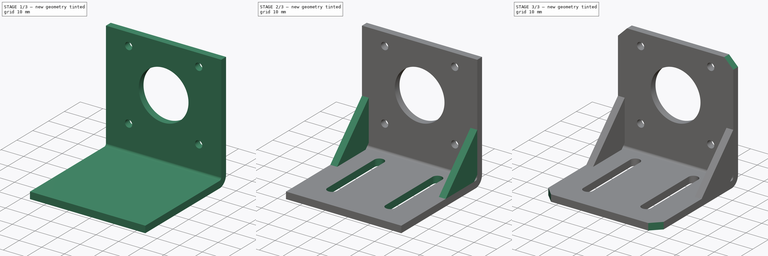
[diagram: build sequence overview — one tinted view per stage of 3, left to right]
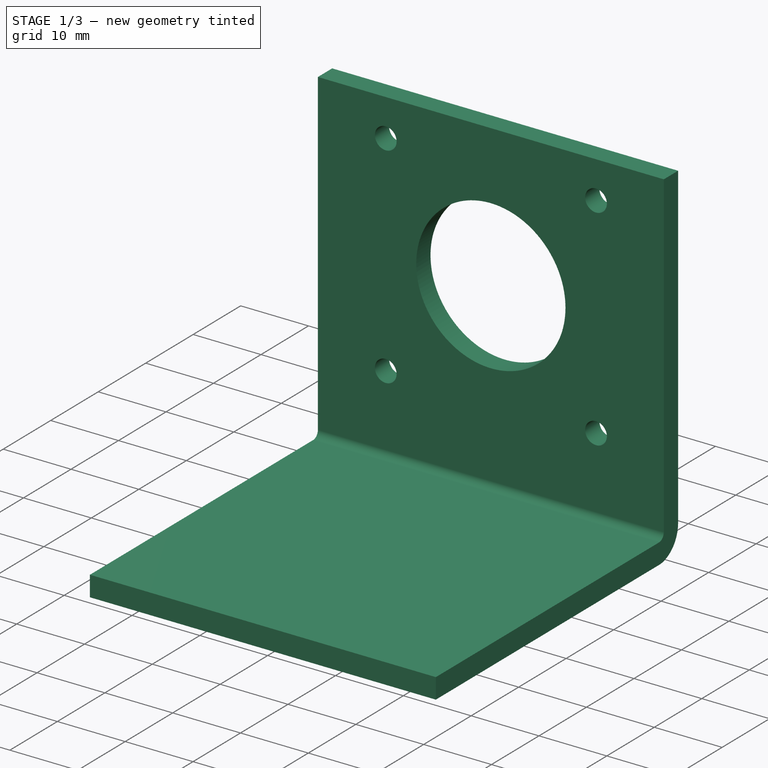
[diagram: stage 1 of 3 — iso view after this stage's code; geometry added in this stage tinted green]
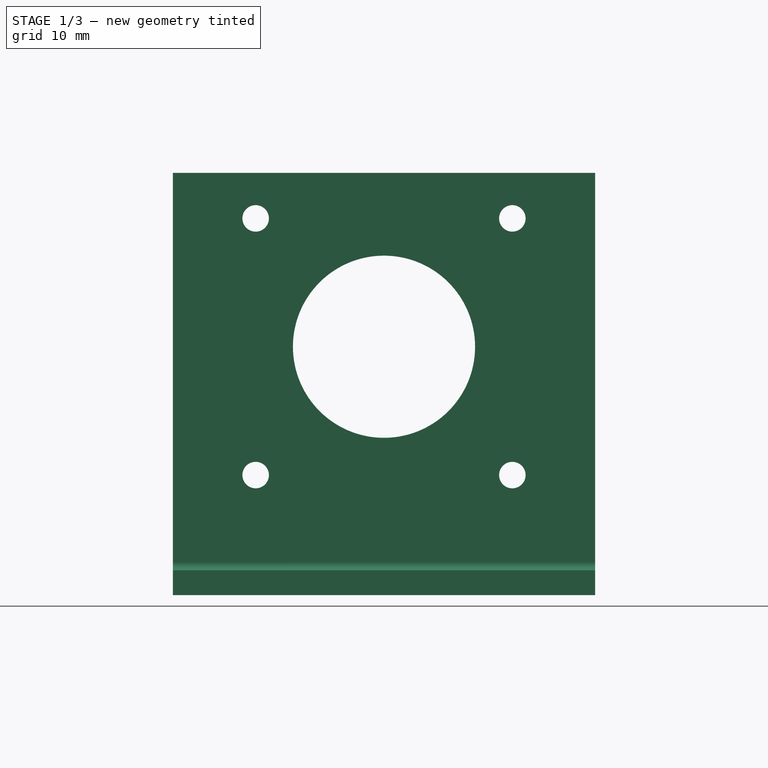
[diagram: stage 1 of 3 — front view after this stage's code; geometry added in this stage tinted green]
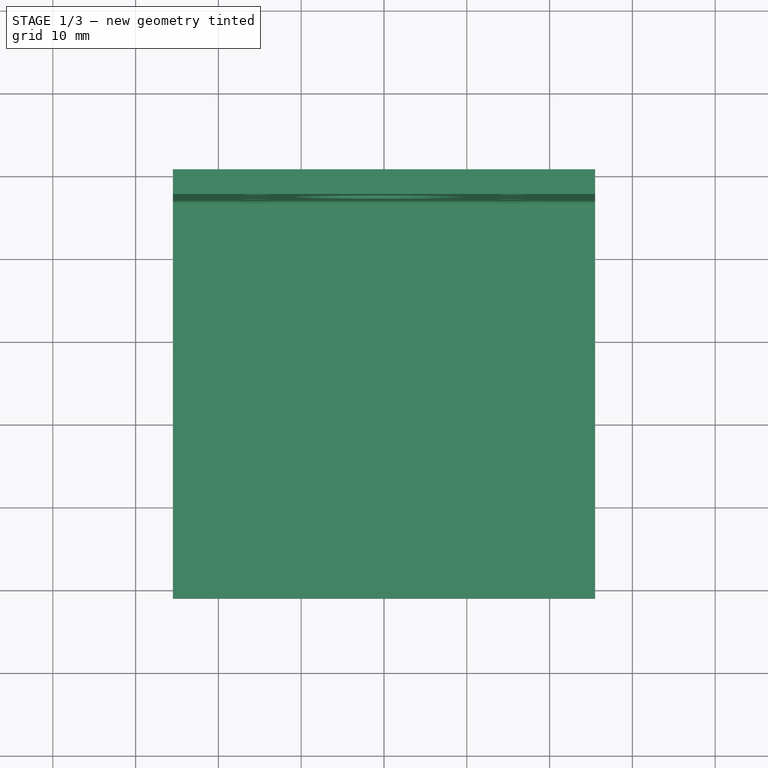
[diagram: stage 1 of 3 — top view after this stage's code; geometry added in this stage tinted green]
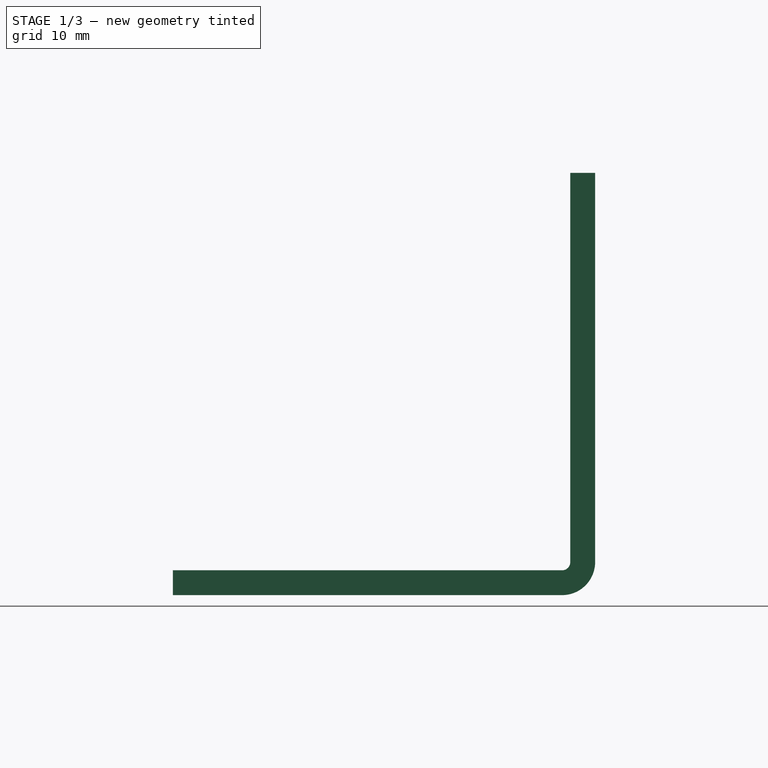
[diagram: stage 1 of 3 — right view after this stage's code; geometry added in this stage tinted green]
FCSTD DOCUMENT  (FreeCAD 0.20R29410 (Git))
Label: MotorBracket
License: All rights reserved
LicenseURL: http://en.wikipedia.org/wiki/All_rights_reserved
objects: Sketcher::SketchObject×5, PartDesign::Pocket×3, App::DocumentObjectGroup×3, PartDesign::Pad×2, PartDesign::Mirrored×2, PartDesign::CoordinateSystem×2, PartDesign::Plane×1, PartDesign::Body×1, App::FeaturePython×1, App::Part×1
note: 21 computed .brp shape members not serialized (recipe doc carries the construction recipe); baked Part::Feature solids carry a one-line shape summary decoded from their .brp

FEATURE [Sketcher::SketchObject] Sketch001
  FullyConstrained = true
  MapMode = 5
  Placement = pos=(0,0,0) rot=(0.57735,0.57735,0.57735;2.0944rad)
  Support = -> [YZ_Plane001]
  expr: Constraints[10] = <<Variables>>.SheetMetalThickness
  sketch-geometry (10):
    g0: LineSegment StartX=-3 StartY=4 StartZ=0 EndX=-3 EndY=51 EndZ=0
    g1: LineSegment StartX=-3 StartY=51 StartZ=0 EndX=0 EndY=51 EndZ=0
    g2: LineSegment StartX=0 StartY=51 StartZ=0 EndX=0 EndY=4 EndZ=0
    g3: LineSegment StartX=-4 StartY=0 StartZ=0 EndX=-51 EndY=0 EndZ=0
    g4: LineSegment StartX=-51 StartY=0 StartZ=0 EndX=-51 EndY=3 EndZ=0
    g5: LineSegment StartX=-51 StartY=3 StartZ=0 EndX=-4 EndY=3 EndZ=0
    g6: ArcOfCircle CenterX=-4 CenterY=4 CenterZ=0 NormalX=0 NormalY=0 NormalZ=1 AngleXU=0 Radius=1 StartAngle=4.71239 EndAngle=6.28319
    g7: GeomPoint X=-3 Y=3 Z=0
    g8: ArcOfCircle CenterX=-4 CenterY=4 CenterZ=0 NormalX=0 NormalY=0 NormalZ=1 AngleXU=0 Radius=4 StartAngle=4.71239 EndAngle=6.28319
    g9: GeomPoint X=0 Y=0 Z=0
  constraints (24):
    c: Coincident(g0,g1)
    c: Coincident(g1,g2)
    c: Horizontal(g1)
    c: Vertical(g0)
    c: Vertical(g2)
    c: Coincident(g3,g4)
    c: Coincident(g4,g5)
    c: Horizontal(g3)
    c: Horizontal(g5)
    c: Vertical(g4)
    c: DistanceX(g1,g1) = 3
    c: DistanceY(g9,g2) = 51
    c: Distance(g9,g3) = 51
    c: Coincident(g9,g-1)
    c: PointOnObject(g7,g0)
    c: PointOnObject(g7,g5)
    c: Tangent(g0,g6) = -1.5708
    c: Tangent(g5,g6) = -1.5708
    c: PointOnObject(g9,g2)
    c: PointOnObject(g9,g3)
    c: Tangent(g2,g8) = 1.5708
    c: Tangent(g3,g8) = 1.5708
    c: Radius(g6) = 1
    c: Coincident(g8,g6)
FEATURE [PartDesign::Pad] Pad001
  Direction = (1,-2e-16,3e-16)
  Length = 51
  Length2 = 25
  Midplane = true
  Placement = pos=(0,0,0) rot=(0.57735,0.57735,0.57735;2.0944rad)
  Profile = -> Sketch001
  ReferenceAxis = -> Sketch001 [N_Axis]
  Type = 0
FEATURE [Sketcher::SketchObject] Sketch002
  AttachmentOffset = pos=(0,30,0) rot=(0,0,1;0rad)
  FullyConstrained = true
  MapMode = 5
  Placement = pos=(0,-6.7e-15,30) rot=(1,0,0;1.5708rad)
  Support = -> [XZ_Plane001]
  sketch-geometry (10):
    g0: Circle CenterX=15.5 CenterY=15.5 CenterZ=0 NormalX=0 NormalY=0 NormalZ=1 AngleXU=0 Radius=1.6
    g1: LineSegment StartX=-15.5 StartY=15.5 StartZ=0 EndX=-15.5 EndY=-15.5 EndZ=0
    g2: LineSegment StartX=-15.5 StartY=-15.5 StartZ=0 EndX=15.5 EndY=-15.5 EndZ=0
    g3: LineSegment StartX=15.5 StartY=-15.5 StartZ=0 EndX=15.5 EndY=15.5 EndZ=0
    g4: LineSegment StartX=15.5 StartY=15.5 StartZ=0 EndX=-15.5 EndY=15.5 EndZ=0
    g5: GeomPoint X=0 Y=0 Z=0
    g6: Circle CenterX=0 CenterY=0 CenterZ=0 NormalX=0 NormalY=0 NormalZ=1 AngleXU=0 Radius=11
    g7: Circle CenterX=-15.5 CenterY=15.5 CenterZ=0 NormalX=0 NormalY=0 NormalZ=1 AngleXU=0 Radius=1.6
    g8: Circle CenterX=-15.5 CenterY=-15.5 CenterZ=0 NormalX=0 NormalY=0 NormalZ=1 AngleXU=0 Radius=1.6
    g9: Circle CenterX=15.5 CenterY=-15.5 CenterZ=0 NormalX=0 NormalY=0 NormalZ=1 AngleXU=0 Radius=1.6
  constraints (22):
    c: Diameter(g0) = 3.2
    c: Coincident(g1,g2)
    c: Coincident(g2,g3)
    c: Coincident(g3,g4)
    c: Coincident(g4,g1)
    c: Horizontal(g2)
    c: Horizontal(g4)
    c: Vertical(g1)
    c: Vertical(g3)
    c: Symmetric(g2,g1,g5)
    c: Equal(g3,g4)
    c: DistanceX(g4,g4) = 31
    c: Coincident(g0,g3)
    c: Coincident(g6,g5)
    c: Diameter(g6) = 22
    c: Coincident(g7,g1)
    c: Coincident(g8,g1)
    c: Coincident(g9,g2)
    c: Equal(g9,g8)
    c: Equal(g8,g7)
    c: Equal(g7,g0)
    c: Coincident(g6,g-1)
FEATURE [PartDesign::Pocket] Pocket001  label="MountHoles"
  BaseFeature = -> Pad001
  Direction = (0,1,2e-16)
  Length = 5
  Length2 = 100
  Placement = pos=(0,0,0) rot=(0.57735,0.57735,0.57735;2.0944rad)
  Profile = -> Sketch002
  Reversed = true
  Type = 1
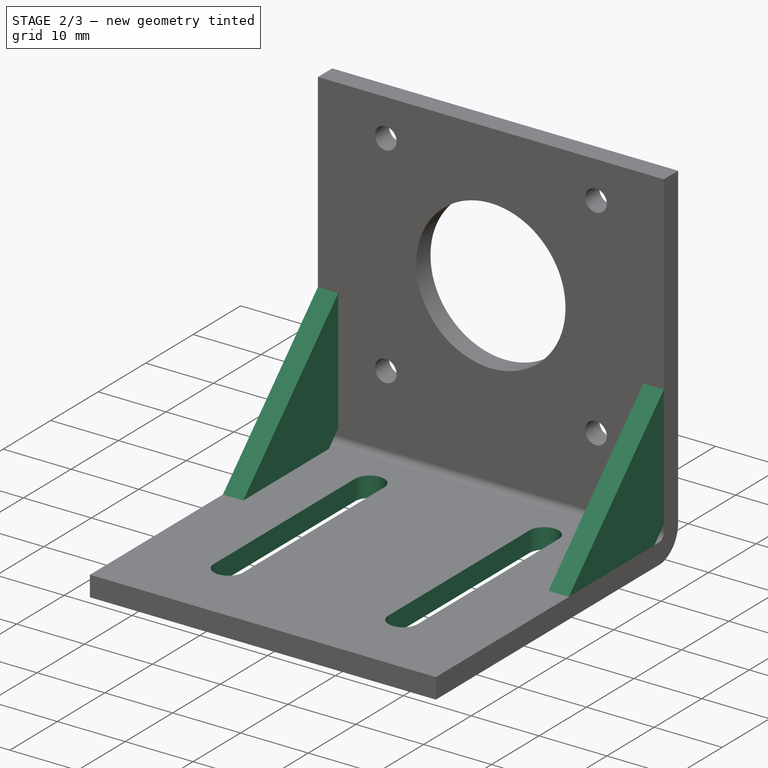
[diagram: stage 2 of 3 — iso view after this stage's code; geometry added in this stage tinted green]
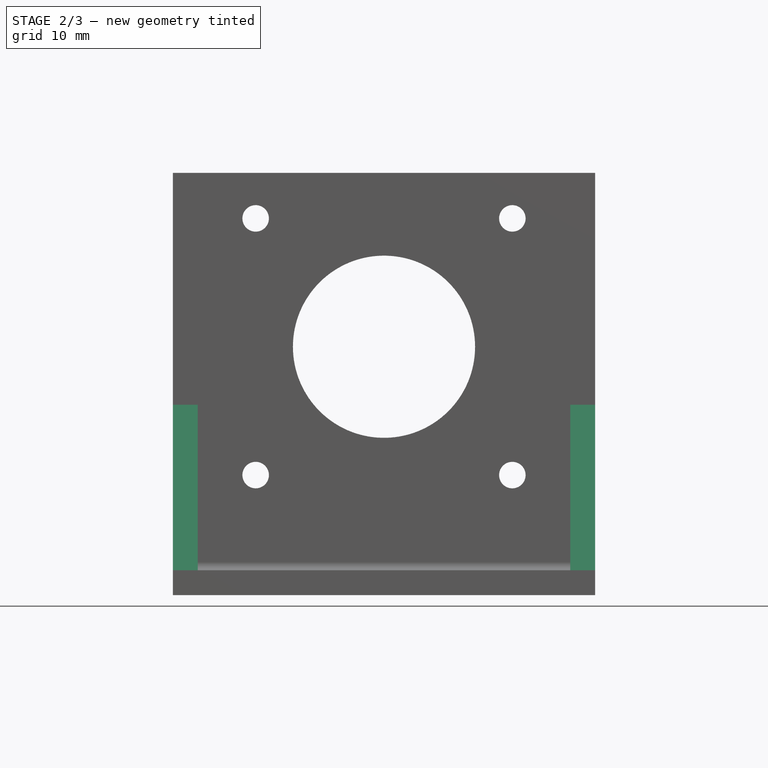
[diagram: stage 2 of 3 — front view after this stage's code; geometry added in this stage tinted green]
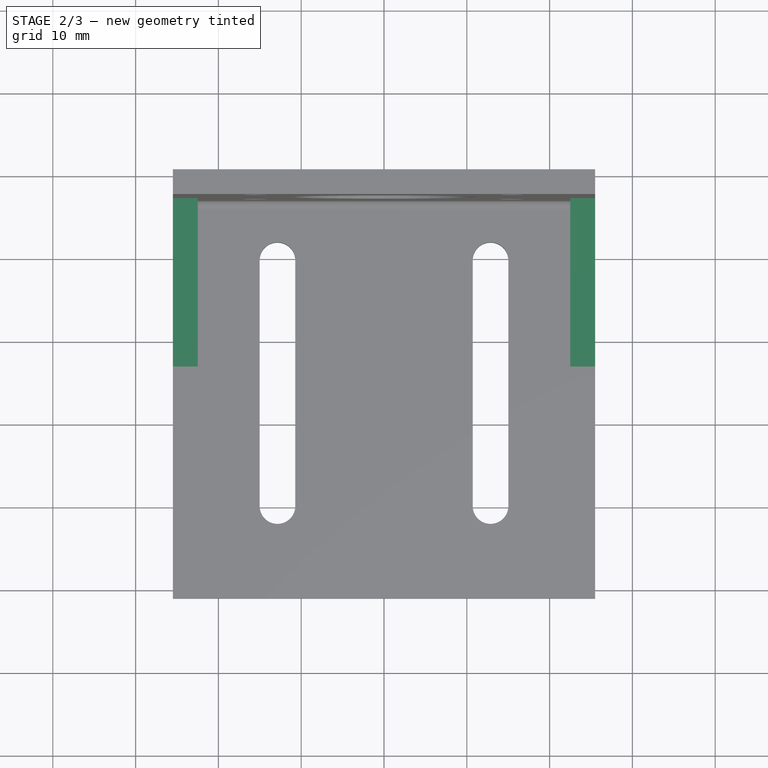
[diagram: stage 2 of 3 — top view after this stage's code; geometry added in this stage tinted green]
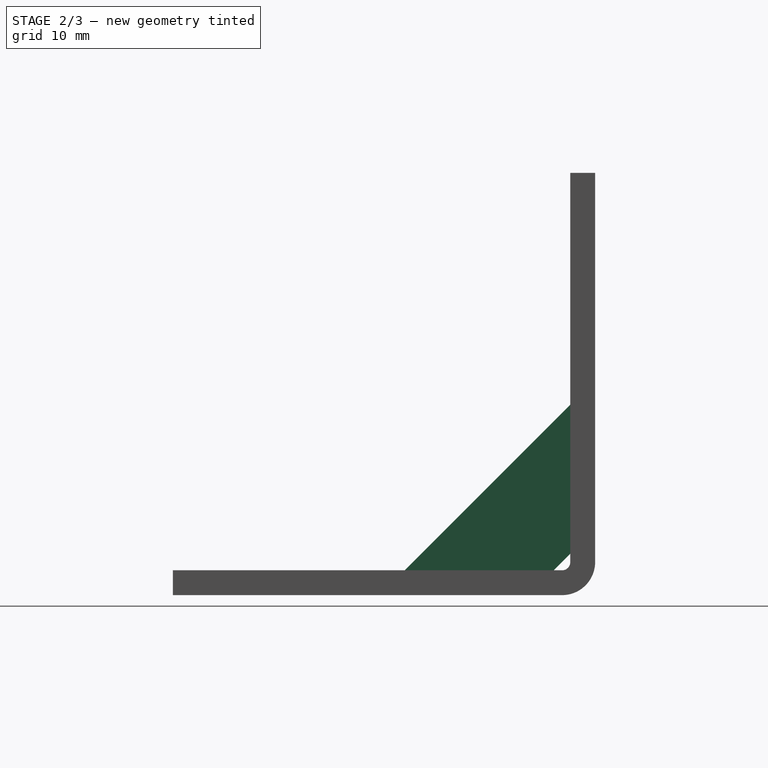
[diagram: stage 2 of 3 — right view after this stage's code; geometry added in this stage tinted green]
FEATURE [Sketcher::SketchObject] Sketch003
  FullyConstrained = true
  MapMode = 5
  Support = -> [XY_Plane001]
  sketch-geometry (6):
    g0: LineSegment StartX=-12.865 StartY=0 StartZ=0 EndX=-12.865 EndY=-10.15 EndZ=0
    g1: ArcOfCircle CenterX=-12.865 CenterY=-10.15 CenterZ=0 NormalX=0 NormalY=0 NormalZ=1 AngleXU=0 Radius=2.15 StartAngle=4e-16 EndAngle=3.1416
    g2: ArcOfCircle CenterX=-12.865 CenterY=-39.85 CenterZ=0 NormalX=0 NormalY=0 NormalZ=1 AngleXU=0 Radius=2.15 StartAngle=3.14159 EndAngle=6.28319
    g3: LineSegment StartX=-10.715 StartY=-10.15 StartZ=0 EndX=-10.715 EndY=-39.85 EndZ=0
    g4: LineSegment StartX=-15.015 StartY=-10.15 StartZ=0 EndX=-15.015 EndY=-39.85 EndZ=0
    g5: LineSegment StartX=-12.865 StartY=-39.85 StartZ=0 EndX=0 EndY=-39.85 EndZ=0
  constraints (17):
    c: PointOnObject(g0,g-1)
    c: Vertical(g0)
    c: DistanceY(g0,g0) = 10.15
    c: Coincident(g1,g0)
    c: Equal(g2,g1)
    c: Vertical(g3)
    c: Vertical(g4)
    c: Coincident(g5,g2)
    c: PointOnObject(g5,g-2)
    c: Horizontal(g5)
    c: Tangent(g1,g3) = 1.5708
    c: Coincident(g1,g4)
    c: Tangent(g2,g4) = -1.5708
    c: Tangent(g2,g3) = 1.5708
    c: DistanceX(g5,g5) = 12.865
    c: Distance(g1,g1) = 4.3
    c: Distance(g1,g2) = 29.7
FEATURE [PartDesign::Pocket] Pocket002  label="BottomSlot"
  BaseFeature = -> Pocket001
  Direction = (0,0,-1)
  Length = 5
  Length2 = 100
  Placement = pos=(0,0,0) rot=(0.57735,0.57735,0.57735;2.0944rad)
  Profile = -> Sketch003
  Reversed = true
  Type = 1
FEATURE [Sketcher::SketchObject] Sketch
  AttachmentOffset = pos=(0,0,-25.5) rot=(0,0,1;0rad)
  FullyConstrained = true
  MapMode = 5
  Placement = pos=(-25.5,5.7e-15,-5.7e-15) rot=(0.57735,0.57735,0.57735;2.0944rad)
  Support = -> [YZ_Plane001]
  expr: .AttachmentOffset.Base.z = <<Pad001>>.Length / -2
  sketch-geometry (8):
    g0: LineSegment StartX=-3 StartY=23 StartZ=0 EndX=-23 EndY=3 EndZ=0
    g1: LineSegment StartX=-3 StartY=3 StartZ=0 EndX=-3 EndY=0 EndZ=0
    g2: LineSegment StartX=-3 StartY=0 StartZ=0 EndX=0 EndY=0 EndZ=0
    g3: LineSegment StartX=-3 StartY=3 StartZ=0 EndX=-3 EndY=5 EndZ=0
    g4: LineSegment StartX=-3 StartY=5 StartZ=0 EndX=-3 EndY=23 EndZ=0
    g5: LineSegment StartX=-23 StartY=3 StartZ=0 EndX=-5 EndY=3 EndZ=0
    g6: LineSegment StartX=-5 StartY=3 StartZ=0 EndX=-3 EndY=3 EndZ=0
    g7: LineSegment StartX=-5 StartY=3 StartZ=0 EndX=-3 EndY=5 EndZ=0
  constraints (22):
    c: Coincident(g0,g5)
    c: Coincident(g4,g0)
    c: DistanceY(g3,g4) = 20
    c: Coincident(g3,g6)
    c: DistanceY(g-1,g6) = 3
    c: Coincident(g1,g6)
    c: PointOnObject(g1,g-1)
    c: Coincident(g2,g1)
    c: Coincident(g2,g-1)
    c: Vertical(g1)
    c: Equal(g1,g2)
    c: Coincident(g3,g4)
    c: Vertical(g3)
    c: Vertical(g4)
    c: Coincident(g5,g6)
    c: Horizontal(g5)
    c: Horizontal(g6)
    c: Coincident(g7,g5)
    c: Coincident(g7,g4)
    c: Equal(g3,g6)
    c: DistanceX(g6,g6) = 2
    c: Equal(g4,g5)
FEATURE [PartDesign::Pad] Pad  label="Rib"
  BaseFeature = -> Pocket002
  Direction = (1,-2e-16,3e-16)
  Length = 3
  Length2 = 10
  Placement = pos=(0,0,0) rot=(0.57735,0.57735,0.57735;2.0944rad)
  Profile = -> Sketch
  ReferenceAxis = -> Sketch [N_Axis]
  Type = 0
  expr: Length = <<Variables>>.SheetMetalThickness
FEATURE [PartDesign::Mirrored] Mirrored
  BaseFeature = -> Pad
  MirrorPlane = -> YZ_Plane001
  Originals = -> [Pocket002,Pad]
  Placement = pos=(0,0,0) rot=(0.57735,0.57735,0.57735;2.0944rad)
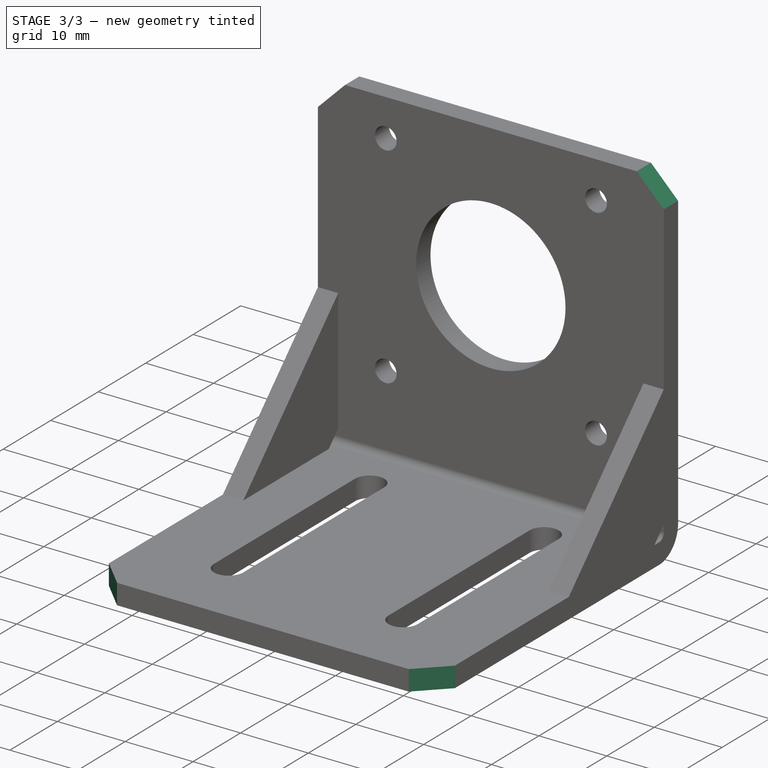
[diagram: stage 3 of 3 — iso view after this stage's code; geometry added in this stage tinted green]
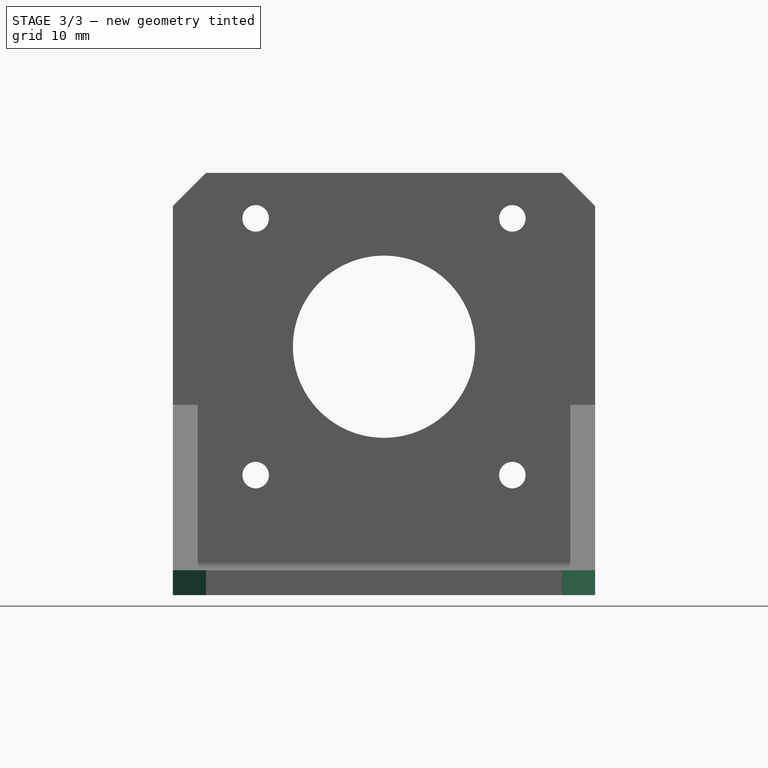
[diagram: stage 3 of 3 — front view after this stage's code; geometry added in this stage tinted green]
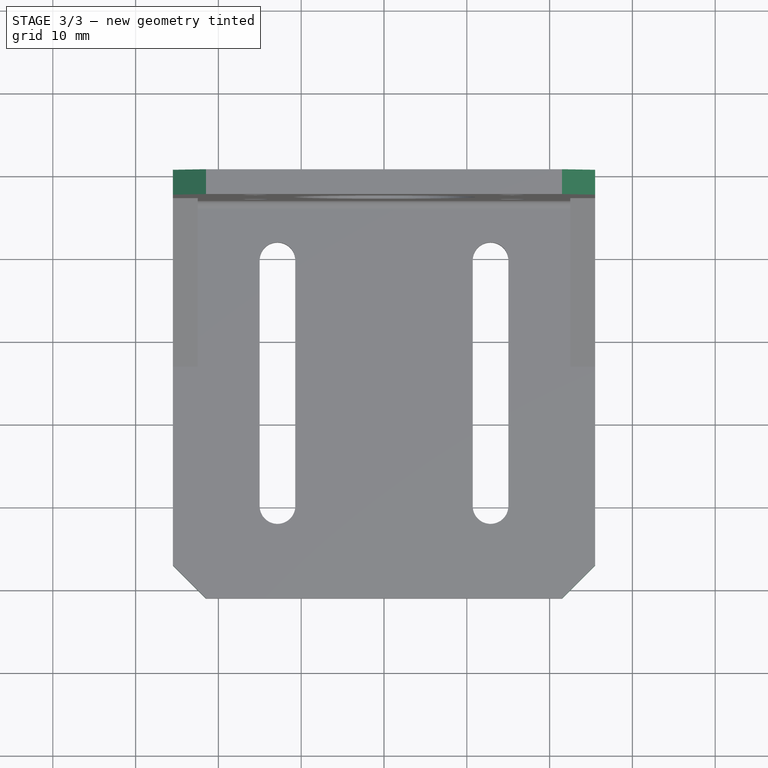
[diagram: stage 3 of 3 — top view after this stage's code; geometry added in this stage tinted green]
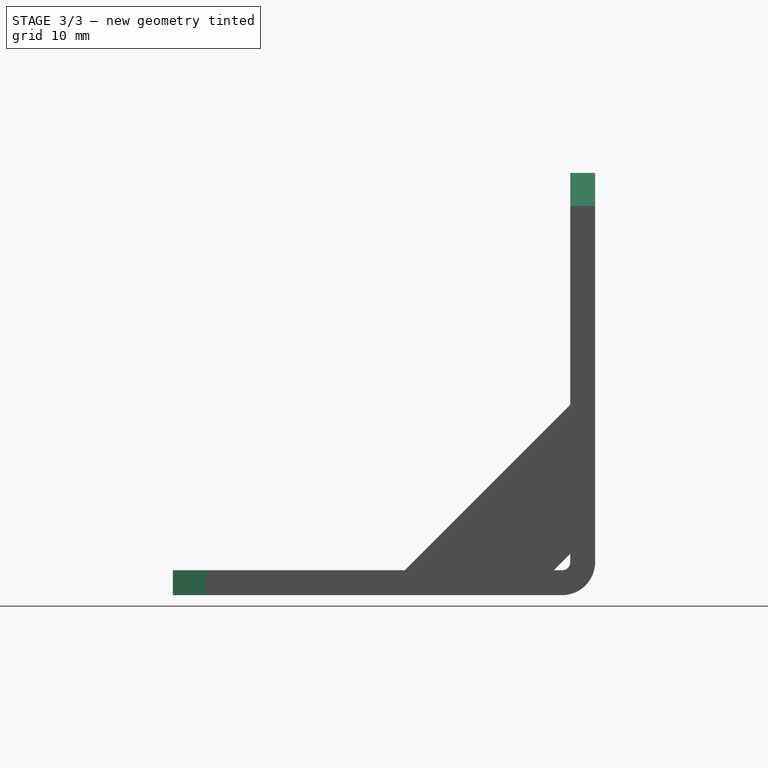
[diagram: stage 3 of 3 — right view after this stage's code; geometry added in this stage tinted green]
FEATURE [Sketcher::SketchObject] Sketch004
  FullyConstrained = true
  MapMode = 5
  Placement = pos=(0,0,0) rot=(1,0,0;1.5708rad)
  Support = -> [XZ_Plane001]
  sketch-geometry (6):
    g0: LineSegment StartX=-72.5 StartY=0 StartZ=0 EndX=0 EndY=72.5 EndZ=0
    g1: LineSegment StartX=0 StartY=72.5 StartZ=0 EndX=72.5 EndY=0 EndZ=0
    g2: LineSegment StartX=72.5 StartY=0 StartZ=0 EndX=72.5 EndY=145 EndZ=0
    g3: LineSegment StartX=-72.5 StartY=0 StartZ=0 EndX=-72.5 EndY=145 EndZ=0
    g4: LineSegment StartX=-72.5 StartY=145 StartZ=0 EndX=72.5 EndY=145 EndZ=0
    g5: LineSegment StartX=-21.5 StartY=51 StartZ=0 EndX=21.5 EndY=51 EndZ=0
  constraints (19):
    c: PointOnObject(g0,g-1)
    c: PointOnObject(g0,g-2)
    c: Coincident(g1,g0)
    c: PointOnObject(g1,g-1)
    c: Coincident(g2,g1)
    c: Vertical(g2)
    c: Coincident(g3,g0)
    c: Vertical(g3)
    c: Coincident(g4,g3)
    c: Coincident(g4,g2)
    c: Horizontal(g4)
    c: Equal(g1,g0)
    c: Angle(g1,g-1) = 0.785398
    c: Equal(g2,g4)
    c: PointOnObject(g5,g0)
    c: PointOnObject(g5,g1)
    c: Horizontal(g5)
    c: DistanceY(g-1,g5) = 51
    c: DistanceX(g5,g5) = 43
FEATURE [PartDesign::Pocket] Pocket  label="CornerChamfer"
  BaseFeature = -> Mirrored
  Direction = (0,1,2e-16)
  Length = 5
  Length2 = 5
  Placement = pos=(0,0,0) rot=(0.57735,0.57735,0.57735;2.0944rad)
  Profile = -> Sketch004
  ReferenceAxis = -> Sketch004 [N_Axis]
  Reversed = true
  Type = 1
FEATURE [PartDesign::Plane] DatumPlane  label="ChamferMirrorRef"
  AttachmentOffset = pos=(0,0,0) rot=(1,0,0;0.785398rad)
  Length = 65.8074
  MapMode = 5
  Placement = pos=(0,0,0) rot=(1,0,0;2.35619rad)
  ResizeMode = 0
  Support = -> [XZ_Plane001]
  Width = 122.288
FEATURE [PartDesign::Mirrored] Mirrored001  label="ChamferMirror"
  BaseFeature = -> Pocket
  MirrorPlane = -> DatumPlane
  Originals = -> [Pocket]
  Placement = pos=(0,0,0) rot=(0.57735,0.57735,0.57735;2.0944rad)
FEATURE [PartDesign::Body] Body001
  Group = -> [Sketch001,Pad001,Sketch002,Pocket001,Sketch003,Pocket002,Sketch,Pad,Mirrored,Sketch004,Pocket,DatumPlane,Mirrored001]
  Origin = -> Origin001
  Tip = -> Mirrored001
FEATURE [App::DocumentObjectGroup] Parts
FEATURE [App::FeaturePython] Variables  # WARN: FeaturePython — macro-defined, semantics opaque (R4)
  SheetMetalThickness = 3
  Type = App::PropertyContainer
FEATURE [App::DocumentObjectGroup] Constraints
FEATURE [App::DocumentObjectGroup] Configurations
FEATURE [PartDesign::CoordinateSystem] LCS_bottom
  AttacherType = Attacher::AttachEngine3D
  MapMode = 2
  Support = -> [XY_Plane]
FEATURE [PartDesign::CoordinateSystem] LCS_motor_mount
  AttacherType = Attacher::AttachEngine3D
  AttachmentOffset = pos=(0,0,3) rot=(0,0,1;0rad)
  MapMode = 2
  Placement = pos=(0,-3,30) rot=(1,0,0;1.5708rad)
  Support = -> [Sketch002]
  expr: .AttachmentOffset.Base.z = <<Variables>>.SheetMetalThickness
FEATURE [App::Part] Assembly
  AssemblyType = Part::Link
  Group = -> [Variables,Constraints,Configurations,Body001,LCS_bottom,LCS_motor_mount]
  Origin = -> Origin
  Type = Assembly
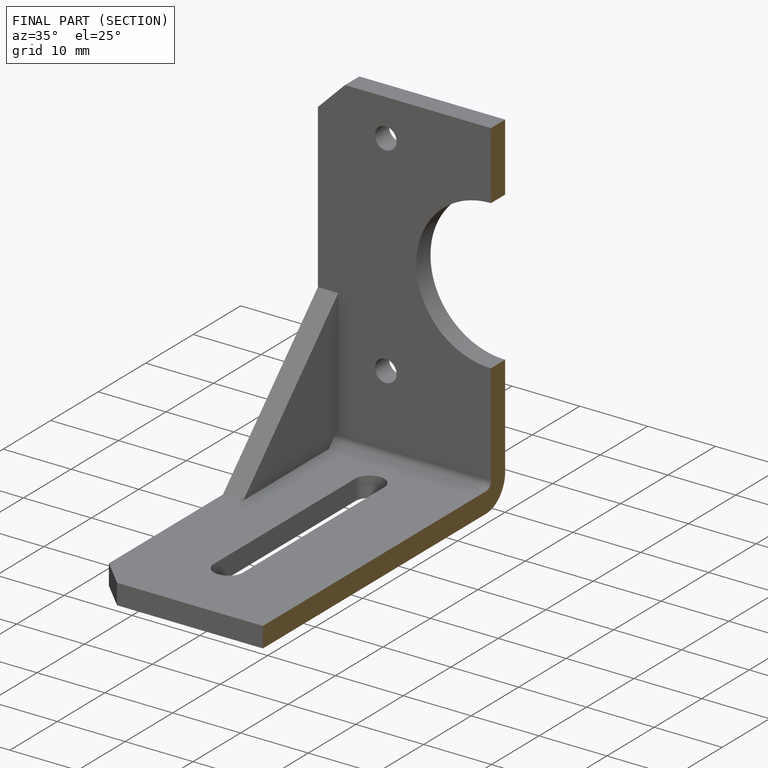
[diagram: finished part — half-section view (interior)]
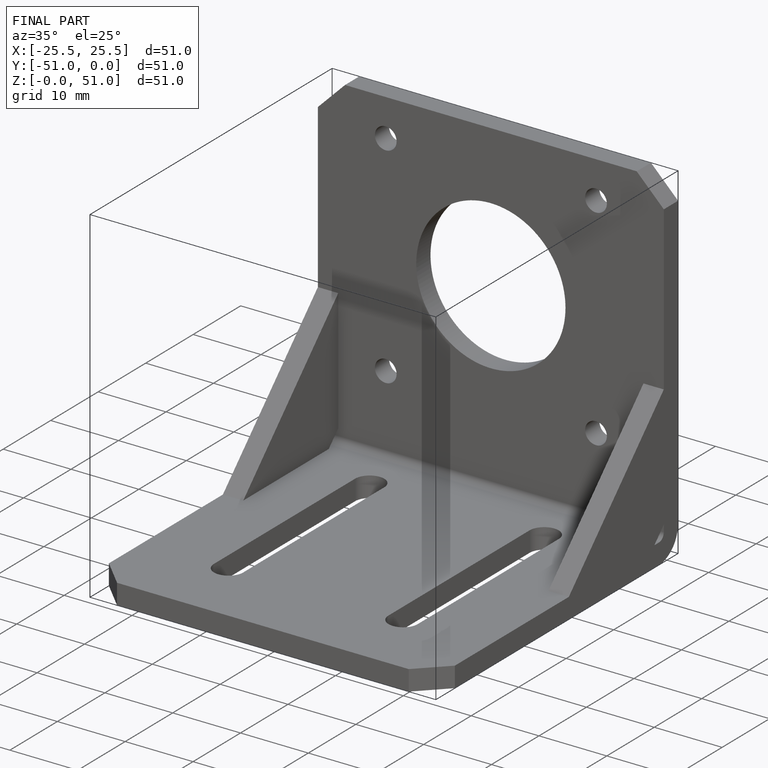
[diagram: finished part — iso view with bounding-box wireframe]
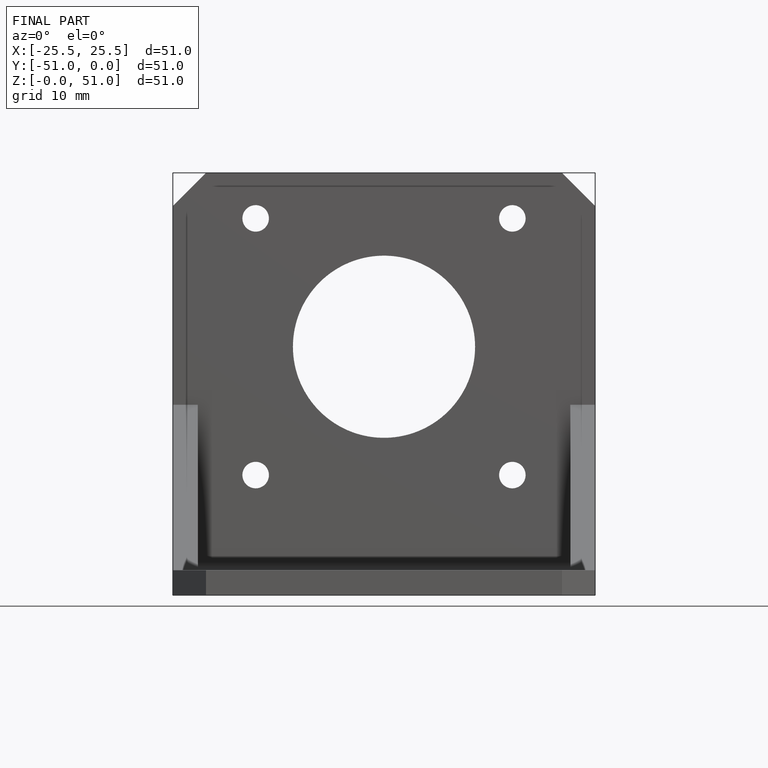
[diagram: finished part — front view with bounding-box wireframe]
